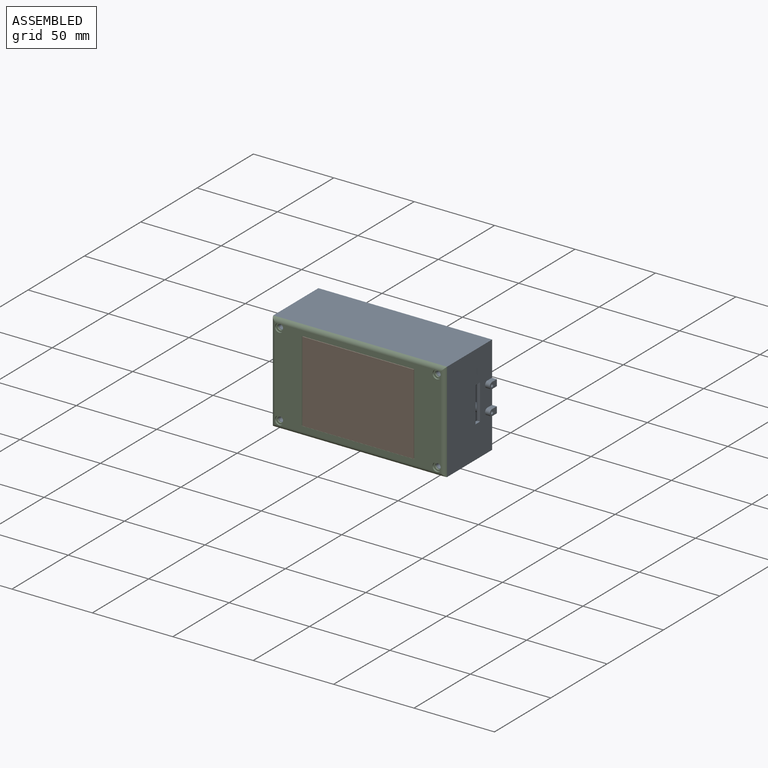
[diagram: assembled view]
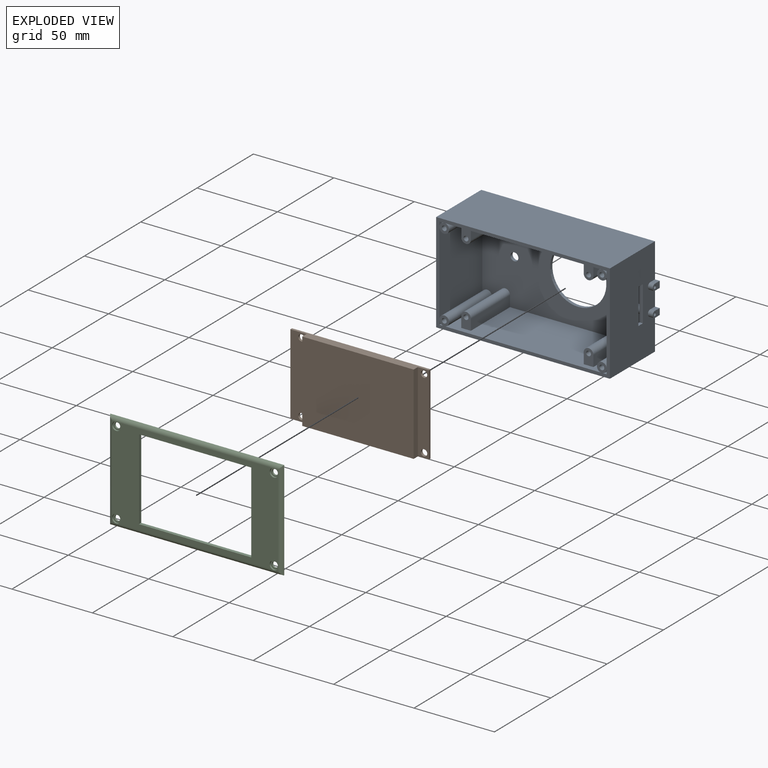
[diagram: exploded view]
GUIDED TOUR — MATED ASSEMBLY (Onshape document b6e88bd1a08d4e2666f2247d, AutoMate assembly b6e88bd1a08d4e2666f2247d_d2dd21feb8f51f84c31c7454_0775f172eb0f7f903577dd89_default)

This assembly has 3 components, labeled P0..P2 below (a component is one placed occurrence of a part; the same part can appear more than once), held together by 2 mates. A mate is a constraint between two components; its type names the relative motion it leaves free:
  FASTENED — locks the two components together rigidly (no relative motion).
Axis/direction vectors are unit vectors and 'through' points are millimeter coordinates, both in the assembly's world frame.

MATES
  1. FASTENED "Fastened 2": P2 <-> P0, direction (0.000, 1.000, 0.000) through (-46.40, -15.87, 29.94) mm
  2. FASTENED "Fastened 1": P1 <-> P0, direction (0.000, 1.000, 0.000) through (-35.13, -12.62, 25.94) mm

ASSEMBLY ORDER
  1. P1 — the base component [order verified]
  2. P2 [order verified]
  3. P0 [order verified]
Order-tag legend:
  [order verified] — this step's position reverses a verified removal order: the component was checked to insert without passing through the ones already placed.

Of the 3 components, 2 carry the full construction recipe — the FeatureScript program that regenerates the part's solid from scratch; the rest are supplied as boundary geometry only.
Each toured component is shown spotlighted twice — in the assembled view, then in the exploded view, where a leader line traces a displaced component back to its assembled socket (saturated green if recipe-attached, orange if geometry-only; every other component desaturated gray) — followed by its recipe or geometry summary and the mates that hold it.
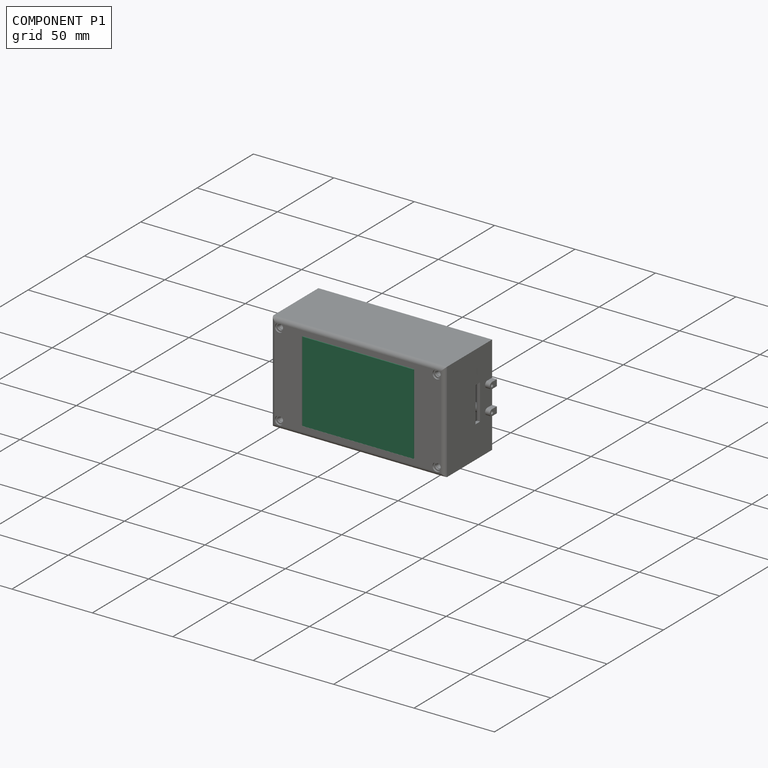
[diagram: component P1 — assembled]
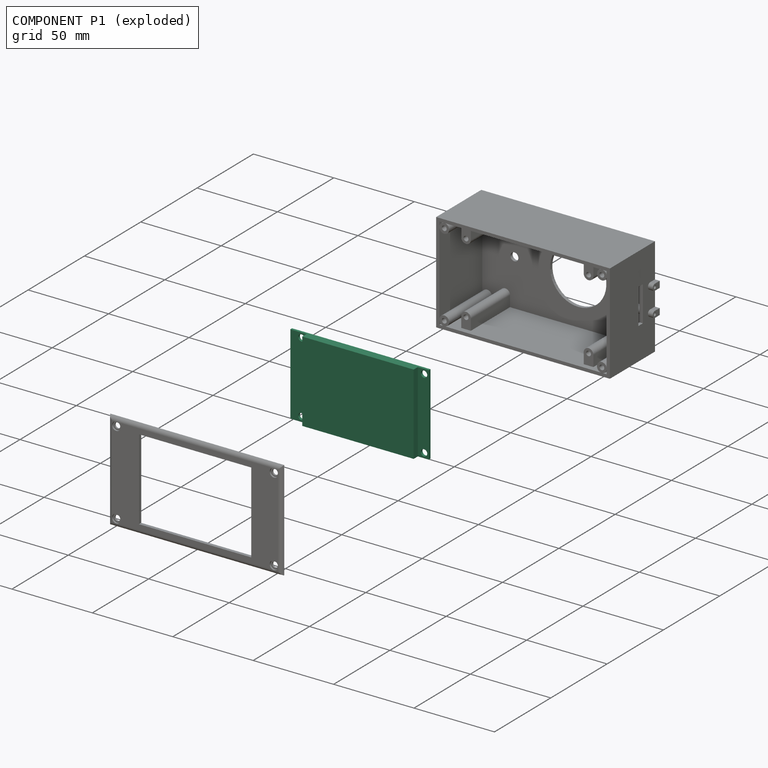
[diagram: component P1 — exploded]
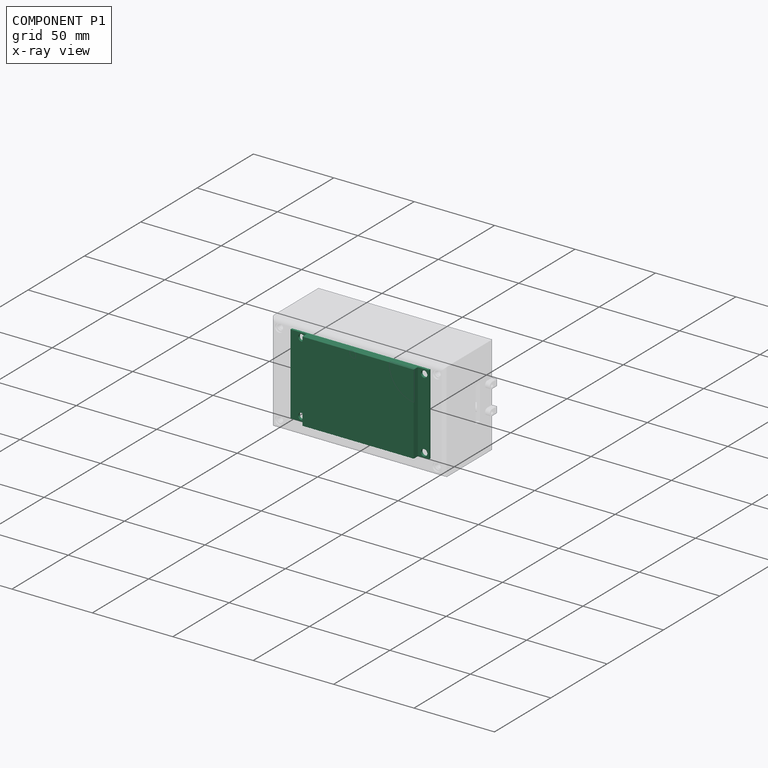
[diagram: component P1 — x-ray view]
COMPONENT P1 — recipe-attached (CADFS 00258539, mesh-verified: the recipe's output STEP matches this component's geometry to below the mesh-comparison resolution (tessellation chordal tolerance ~0.15 mm)).
Held by: FASTENED mate "Fastened 1" to P0.
Construction recipe (FeatureScript — the CAD program that rebuilds this solid; sketch coordinates are in the units given by the * unit suffixes, e.g. mm):

FeatureScript 1511;
import(path : "onshape/std/geometry.fs", version : "1511.0");
import(path : "onshape/std/common.fs", version : "1511.0");
const mm = millimeter;
const VERTEX = EntityType.VERTEX;
const EDGE = EntityType.EDGE;
const FACE = EntityType.FACE;
const BODY = EntityType.BODY;
function v(x, y){return vector(x, y);}
function OD(order){return orderDisambiguation(order);}
function OSD(set){return originalSetDisambiguation(set);}
function TD(topology){return topologyDisambiguation(topology);}
function TDD(query){return trueDependencyDisambiguation(query);}
function sQuery(a, b, c) {return sketchEntityQuery(a, b, c);}

annotation { "Feature Type Name" : "Feature", "Feature Type Description" : "" }
export const myFeature = defineFeature(function(context is Context, id is Id, definition is map)
    precondition{}
    {
        {
            var Q0;
            Q0=qCreatedBy(makeId("Front.planeOp"),FACE);
            var sketch = newSketch(context, id + "F0", { "sketchPlane" : qUnion([Q0])});
            skLineSegment(sketch, "E0.bottom", {"start": v(-43.05, 25.1) * mm, "end": v(43.05, 25.1) * mm});
            skLineSegment(sketch, "E0.top", {"start": v(-43.05, -25.1) * mm, "end": v(43.05, -25.1) * mm});
            skLineSegment(sketch, "E0.left", {"start": v(-43.05, 25.1) * mm, "end": v(-43.05, -25.1) * mm});
            skLineSegment(sketch, "E0.right", {"start": v(43.05, 25.1) * mm, "end": v(43.05, -25.1) * mm});
            skPoint(sketch, "E0.middle", {"position": v(0, 0) * mm});
            skSolve(sketch);
        }
        {
            var Q0;
            Q0 = qSketchRegion(id + "F0", true);
            extrude(context, id + "F1", {"entities" : qUnion([Q0]), "oppositeDirection" : true, "depth" : 1.5 * mm});
        }
        {
            var Q0;
            Q0=qCreatedBy(makeId("Front.planeOp"),FACE);
            var sketch = newSketch(context, id + "F2", { "sketchPlane" : qUnion([Q0])});
            skLineSegment(sketch, "E1.bottom", {"start": v(-33.05, 25.1) * mm, "end": v(36.25, 25.1) * mm});
            skLineSegment(sketch, "E1.top", {"start": v(-33.05, -25.1) * mm, "end": v(36.25, -25.1) * mm});
            skLineSegment(sketch, "E1.left", {"start": v(-33.05, 25.1) * mm, "end": v(-33.05, -25.1) * mm});
            skLineSegment(sketch, "E1.right", {"start": v(36.25, 25.1) * mm, "end": v(36.25, -25.1) * mm});
            skSolve(sketch);
        }
        {
            var Q0;
            Q0 = qSketchRegion(id + "F2", true);
            extrude(context, id + "F3", {"entities" : qUnion([Q0]), "operationType" : NewBodyOperationType.ADD, "depth" : 3.75 * mm});
        }
        {
            var Q0;
            Q0=qCreatedBy(makeId("Front.planeOp"),FACE);
            var sketch = newSketch(context, id + "F4", { "sketchPlane" : qUnion([Q0])});
            skCircle(sketch, "E2", {"center": v(-36.13, 22.1) * mm, "radius": 2 * mm});
            skCircle(sketch, "E3", {"center": v(-36.13, -22.1) * mm, "radius": 2 * mm});
            skCircle(sketch, "E4", {"center": v(40.05, 22.1) * mm, "radius": 2 * mm});
            skCircle(sketch, "E5", {"center": v(40.05, -22.1) * mm, "radius": 2 * mm});
            skSolve(sketch);
        }
        {
            var Q0;
            Q0 = qSketchRegion(id + "F4", true);
            extrude(context, id + "F5", {"entities" : qUnion([Q0]), "operationType" : NewBodyOperationType.REMOVE, "endBound" : BoundingType.THROUGH_ALL, "oppositeDirection" : true, "depth" : 25 * mm});
        }
    });
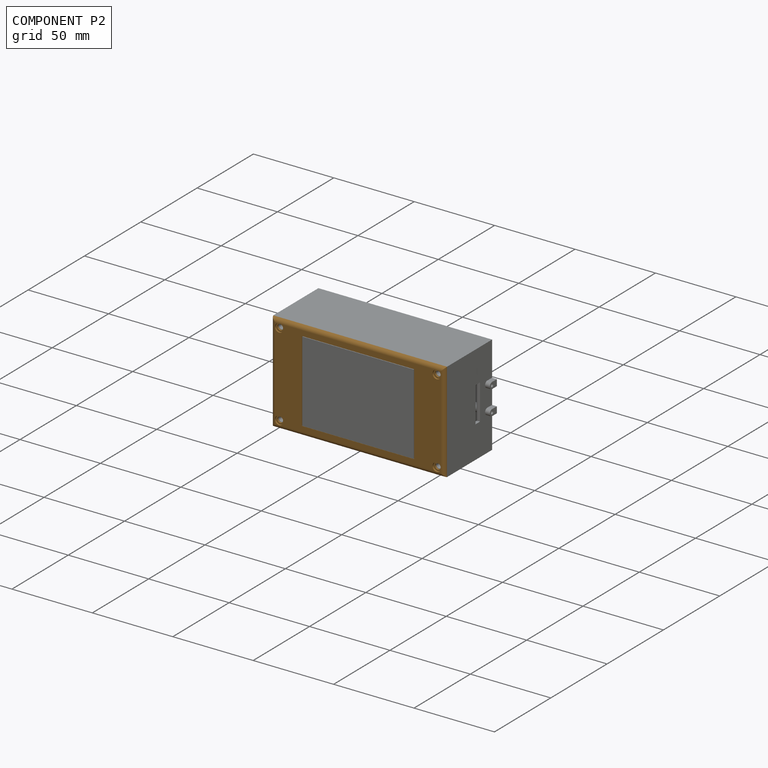
[diagram: component P2 — assembled]
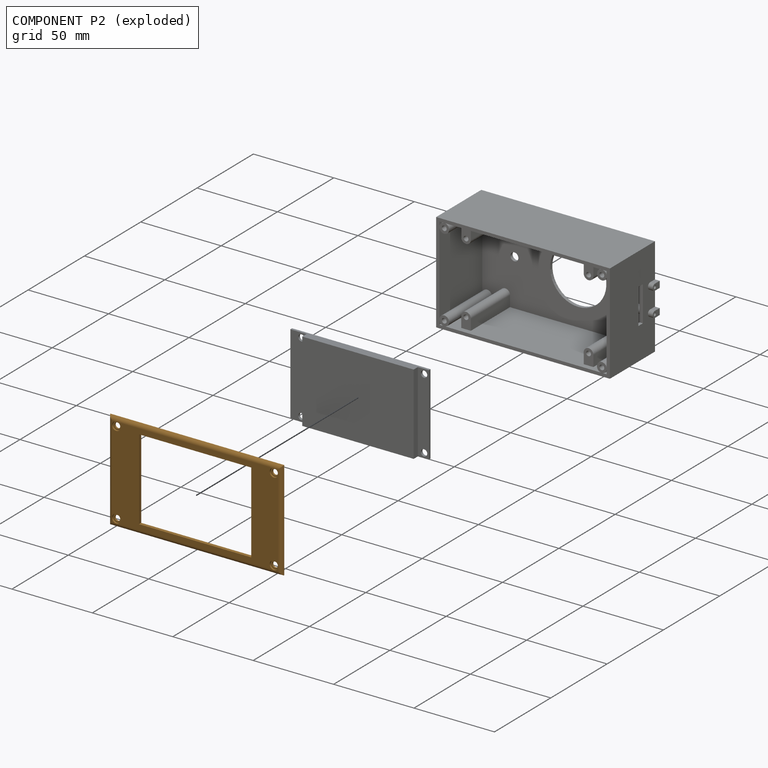
[diagram: component P2 — exploded]
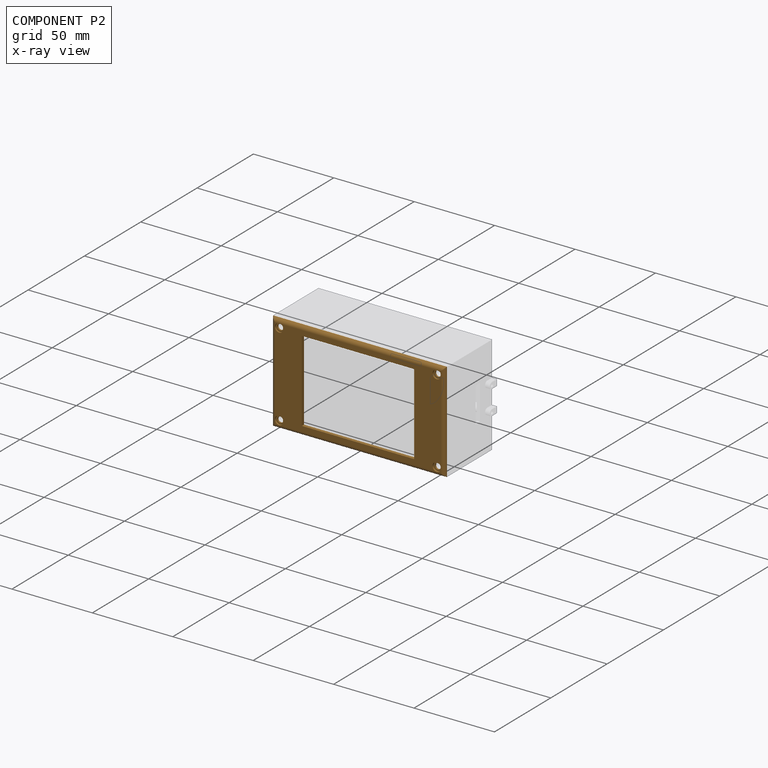
[diagram: component P2 — x-ray view]
COMPONENT P2 — geometry summary (no construction recipe available for this part):
  bounding box: 108.0 x 62.0 x 2.0 mm
  B-rep topology: 1 solid, 34 faces, 176 edges
  volume: 5660 mm^3 (42% of its bounding box)
  symmetry: mirror-symmetric across its x mid-plane, z mid-plane
Held by: FASTENED mate "Fastened 2" to P0.
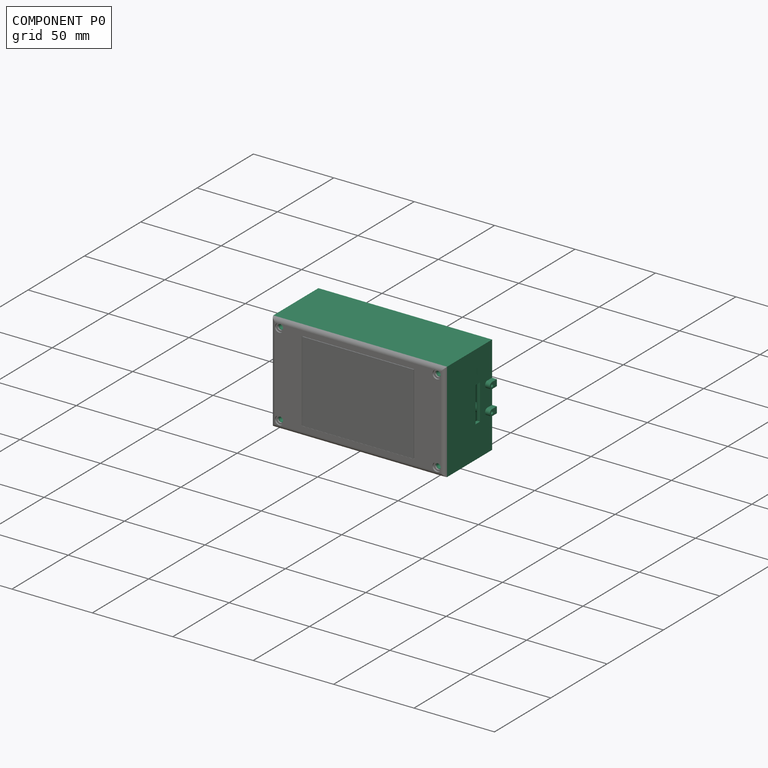
[diagram: component P0 — assembled]
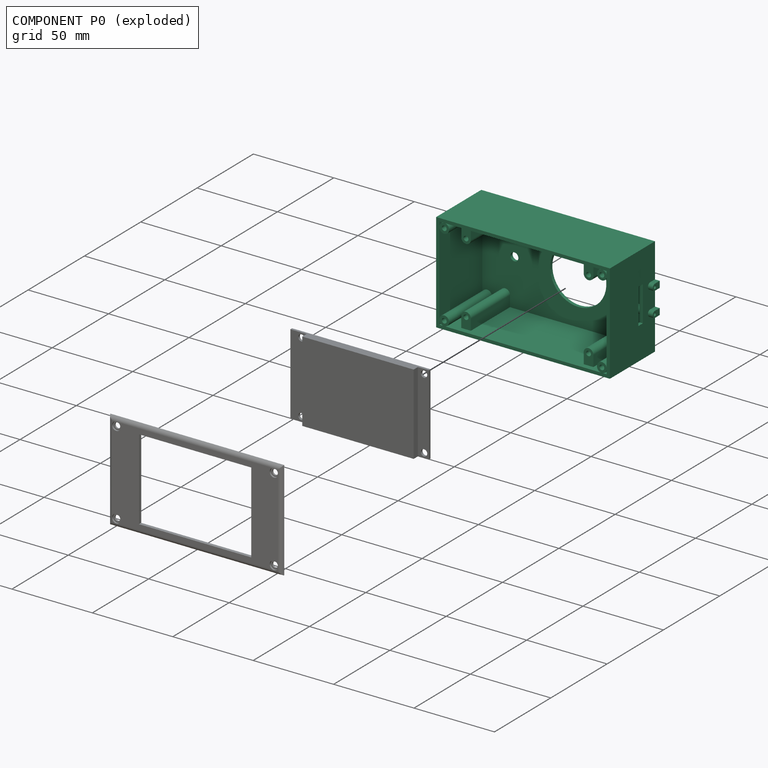
[diagram: component P0 — exploded]
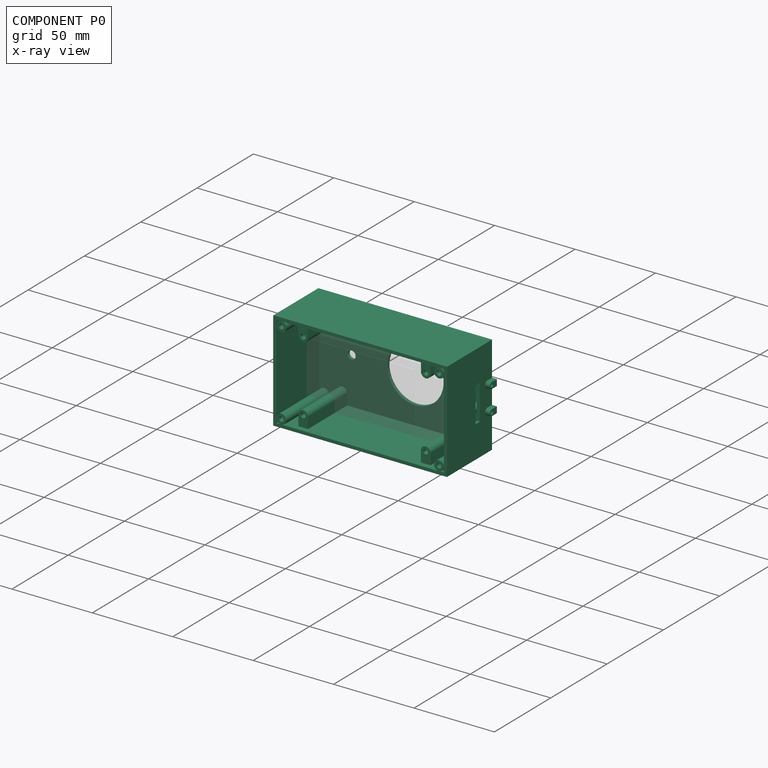
[diagram: component P0 — x-ray view]
COMPONENT P0 — recipe-attached (CADFS 00258538, mesh-verified: the recipe's output STEP matches this component's geometry to below the mesh-comparison resolution (tessellation chordal tolerance ~0.2 mm)).
Held by: FASTENED mate "Fastened 2" to P2; FASTENED mate "Fastened 1" to P1.
Construction recipe (FeatureScript — the CAD program that rebuilds this solid; sketch coordinates are in the units given by the * unit suffixes, e.g. mm):

FeatureScript 1511;
import(path : "onshape/std/geometry.fs", version : "1511.0");
import(path : "onshape/std/common.fs", version : "1511.0");
const mm = millimeter;
const VERTEX = EntityType.VERTEX;
const EDGE = EntityType.EDGE;
const FACE = EntityType.FACE;
const BODY = EntityType.BODY;
function v(x, y){return vector(x, y);}
function OD(order){return orderDisambiguation(order);}
function OSD(set){return originalSetDisambiguation(set);}
function TD(topology){return topologyDisambiguation(topology);}
function TDD(query){return trueDependencyDisambiguation(query);}
function sQuery(a, b, c) {return sketchEntityQuery(a, b, c);}

annotation { "Feature Type Name" : "Feature", "Feature Type Description" : "" }
export const myFeature = defineFeature(function(context is Context, id is Id, definition is map)
    precondition{}
    {
        {
            var Q0;
            Q0=qCreatedBy(makeId("Front.planeOp"),FACE);
            var sketch = newSketch(context, id + "F0", { "sketchPlane" : qUnion([Q0])});
            skLineSegment(sketch, "E0.bottom", {"start": v(-54, 31) * mm, "end": v(54, 31) * mm});
            skLineSegment(sketch, "E0.top", {"start": v(-54, -31) * mm, "end": v(54, -31) * mm});
            skLineSegment(sketch, "E0.left", {"start": v(-54, 31) * mm, "end": v(-54, -31) * mm});
            skLineSegment(sketch, "E0.right", {"start": v(54, 31) * mm, "end": v(54, -31) * mm});
            skPoint(sketch, "E0.middle", {"position": v(0, 0) * mm});
            skSolve(sketch);
        }
        {
            var Q0;
            Q0 = qSketchRegion(id + "F0", true);
            extrude(context, id + "F1", {"entities" : qUnion([Q0]), "oppositeDirection" : true, "depth" : 40 * mm});
        }
        {
            var Q0;
            Q0=qCreatedBy(makeId("Front.planeOp"),FACE);
            var sketch = newSketch(context, id + "F2", { "sketchPlane" : qUnion([Q0])});
            skLineSegment(sketch, "E1.bottom", {"start": v(-52, 29) * mm, "end": v(52, 29) * mm});
            skLineSegment(sketch, "E1.top", {"start": v(-52, -29) * mm, "end": v(52, -29) * mm});
            skLineSegment(sketch, "E1.left", {"start": v(-52, 29) * mm, "end": v(-52, -29) * mm});
            skLineSegment(sketch, "E1.right", {"start": v(52, 29) * mm, "end": v(52, -29) * mm});
            skPoint(sketch, "E1.middle", {"position": v(0, 0) * mm});
            skSolve(sketch);
        }
        {
            var Q0;
            Q0 = qSketchRegion(id + "F2", true);
            extrude(context, id + "F3", {"entities" : qUnion([Q0]), "operationType" : NewBodyOperationType.REMOVE, "oppositeDirection" : true, "depth" : 38 * mm});
        }
        {
            var Q0;
            Q0=qCreatedBy(makeId("Front.planeOp"),FACE);
            var sketch = newSketch(context, id + "F4", { "sketchPlane" : qUnion([Q0])});
            skLineSegment(sketch, "E2", {"start": v(-34.65, 43.37) * mm, "end": v(34.65, 43.37) * mm, "construction": true});
            skCircle(sketch, "E3", {"center": v(-37.73, 43.37) * mm, "radius": 3 * mm, "construction": true});
            skCircle(sketch, "E4", {"center": v(38.45, 43.37) * mm, "radius": 3 * mm, "construction": true});
            skCircle(sketch, "E5", {"center": v(-37.73, 22) * mm, "radius": 3 * mm});
            skCircle(sketch, "E6", {"center": v(38.45, 22) * mm, "radius": 3 * mm});
            skCircle(sketch, "E7", {"center": v(-37.73, -22.2) * mm, "radius": 3 * mm});
            skCircle(sketch, "E8", {"center": v(38.45, -22.2) * mm, "radius": 3 * mm});
            skLineSegment(sketch, "E9", {"start": v(-40.73, 22) * mm, "end": v(-40.73, 29.02) * mm});
            skLineSegment(sketch, "E10", {"start": v(-34.73, 22) * mm, "end": v(-34.73, 29.02) * mm});
            skLineSegment(sketch, "E11", {"start": v(-40.73, 29.02) * mm, "end": v(-34.73, 29.02) * mm});
            skLineSegment(sketch, "E12", {"start": v(41.45, 22) * mm, "end": v(41.45, 29.1) * mm});
            skLineSegment(sketch, "E13", {"start": v(35.45, 22) * mm, "end": v(35.45, 29.1) * mm});
            skLineSegment(sketch, "E14", {"start": v(35.45, 29.1) * mm, "end": v(41.45, 29.1) * mm});
            skLineSegment(sketch, "E15", {"start": v(-40.73, -22.2) * mm, "end": v(-40.73, -29.27) * mm});
            skLineSegment(sketch, "E16", {"start": v(-34.73, -22.2) * mm, "end": v(-34.73, -29.29) * mm});
            skLineSegment(sketch, "E17", {"start": v(-34.73, -29.29) * mm, "end": v(-40.73, -29.27) * mm});
            skLineSegment(sketch, "E18", {"start": v(41.45, -22.2) * mm, "end": v(41.45, -29.3) * mm});
            skLineSegment(sketch, "E19", {"start": v(35.45, -22.2) * mm, "end": v(35.45, -29.3) * mm});
            skLineSegment(sketch, "E20", {"start": v(35.45, -29.3) * mm, "end": v(41.45, -29.3) * mm});
            skSolve(sketch);
        }
        {
            var Q0;
            Q0 = qSketchRegion(id + "F4", true);
            var Q1;
            Q1=makeQuery(id+"F3.boolean.opBoolean","COPY",FACE,{"derivedFrom":makeQuery(id+"F3.opExtrude","CAP_FACE",FACE,{"disambiguationData":[OSD([sQuery(id+"F2.wireOp",EDGE,"E1.bottom"),sQuery(id+"F2.wireOp",EDGE,"E1.top"),sQuery(id+"F2.wireOp",EDGE,"E1.left"),sQuery(id+"F2.wireOp",EDGE,"E1.right")])],"isStart":false})});
            extrude(context, id + "F5", {"entities" : qUnion([Q0]), "operationType" : NewBodyOperationType.ADD, "endBound" : BoundingType.UP_TO_SURFACE, "oppositeDirection" : true, "endBoundEntityFace" : qUnion([Q1]), "depth" : 25 * mm, "hasSecondDirection" : true, "secondDirectionOppositeDirection" : true, "secondDirectionDepth" : 3.25 * mm});
        }
        {
            var Q0;
            Q0=qCreatedBy(makeId("Front.planeOp"),FACE);
            var sketch = newSketch(context, id + "F6", { "sketchPlane" : qUnion([Q0])});
            skCircle(sketch, "E21", {"center": v(-49, 26) * mm, "radius": 3.05 * mm});
            skCircle(sketch, "E22", {"center": v(49, 26) * mm, "radius": 3.05 * mm});
            skCircle(sketch, "E23", {"center": v(49, -26) * mm, "radius": 3.05 * mm});
            skCircle(sketch, "E24", {"center": v(-49, -26) * mm, "radius": 3.05 * mm});
            skSolve(sketch);
        }
        {
            var Q0;
            Q0 = qSketchRegion(id + "F6", true);
            var Q1;
            Q1=makeQuery(id+"F3.boolean.opBoolean","COPY",FACE,{"derivedFrom":makeQuery(id+"F3.opExtrude","CAP_FACE",FACE,{"disambiguationData":[OSD([sQuery(id+"F2.wireOp",EDGE,"E1.bottom"),sQuery(id+"F2.wireOp",EDGE,"E1.top"),sQuery(id+"F2.wireOp",EDGE,"E1.left"),sQuery(id+"F2.wireOp",EDGE,"E1.right")])],"isStart":false})});
            extrude(context, id + "F7", {"entities" : qUnion([Q0]), "operationType" : NewBodyOperationType.ADD, "endBound" : BoundingType.UP_TO_SURFACE, "oppositeDirection" : true, "endBoundEntityFace" : qUnion([Q1]), "depth" : 25 * mm});
        }
        {
            var Q0;
            Q0=qCreatedBy(makeId("Front.planeOp"),FACE);
            var sketch = newSketch(context, id + "F8", { "sketchPlane" : qUnion([Q0])});
            skCircle(sketch, "E25", {"center": v(-49, 26) * mm, "radius": 1.5 * mm});
            skCircle(sketch, "E26", {"center": v(-49, -26) * mm, "radius": 1.5 * mm});
            skCircle(sketch, "E27", {"center": v(49, -26) * mm, "radius": 1.5 * mm});
            skCircle(sketch, "E28", {"center": v(49, 26) * mm, "radius": 1.5 * mm});
            skSolve(sketch);
        }
        {
            var Q0;
            Q0 = qSketchRegion(id + "F8", true);
            extrude(context, id + "F9", {"entities" : qUnion([Q0]), "operationType" : NewBodyOperationType.REMOVE, "oppositeDirection" : true, "depth" : 15 * mm});
        }
        {
            var Q0;
            Q0=qCreatedBy(makeId("Front.planeOp"),FACE);
            var sketch = newSketch(context, id + "F10", { "sketchPlane" : qUnion([Q0])});
            skLineSegment(sketch, "E29", {"start": v(-34.65, 43.4) * mm, "end": v(34.65, 43.4) * mm, "construction": true});
            skCircle(sketch, "E30", {"center": v(-37.73, 43.4) * mm, "radius": 3 * mm, "construction": true});
            skCircle(sketch, "E31", {"center": v(38.45, 43.4) * mm, "radius": 3 * mm, "construction": true});
            skCircle(sketch, "E32", {"center": v(-37.73, 22) * mm, "radius": 1.5 * mm});
            skCircle(sketch, "E33", {"center": v(-37.73, -22.2) * mm, "radius": 1.5 * mm});
            skCircle(sketch, "E34", {"center": v(38.45, 22) * mm, "radius": 1.5 * mm});
            skCircle(sketch, "E35", {"center": v(38.45, -22.2) * mm, "radius": 1.5 * mm});
            skSolve(sketch);
        }
        {
            var Q0;
            Q0 = qSketchRegion(id + "F10", true);
            extrude(context, id + "F11", {"entities" : qUnion([Q0]), "operationType" : NewBodyOperationType.REMOVE, "oppositeDirection" : true, "depth" : 18.5 * mm});
        }
        {
            var Q0;
            Q0=qCreatedBy(makeId("Front.planeOp"),FACE);
            var sketch = newSketch(context, id + "F12", { "sketchPlane" : qUnion([Q0])});
            skCircle(sketch, "E36", {"center": v(7.71, 0) * mm, "radius": 17.5 * mm});
            skCircle(sketch, "E37", {"center": v(-32, 0) * mm, "radius": 2.5 * mm});
            skCircle(sketch, "E38", {"center": v(32, 0) * mm, "radius": 2.5 * mm});
            skSolve(sketch);
        }
        {
            var Q0;
            Q0 = qSketchRegion(id + "F12", true);
            extrude(context, id + "F13", {"entities" : qUnion([Q0]), "operationType" : NewBodyOperationType.REMOVE, "endBound" : BoundingType.THROUGH_ALL, "oppositeDirection" : true, "depth" : 25 * mm});
        }
        {
            var Q0;
            Q0=makeQuery(id+"F1.opExtrude","SWEPT_FACE",FACE,{"disambiguationData":[OSD([sQuery(id+"F0.wireOp",EDGE,"E0.right")])]});
            cPlane(context, id + "F14", {"entities" : qUnion([Q0]), "cplaneType" : CPlaneType.OFFSET, "offset" : 0 * mm, "width" : 150 * mm, "height" : 150 * mm});
        }
        {
            var Q0;
            Q0=qCreatedBy(id+"F14.planeOp",FACE);
            var sketch = newSketch(context, id + "F15", { "sketchPlane" : qUnion([Q0])});
            skArc(sketch, "E39", {"start": v(35.79, 9.62) * mm, "mid": v(33.76, 7.6) * mm, "end": v(35.85, 5.63) * mm});
            skArc(sketch, "E40", {"start": v(35.82, -5.63) * mm, "mid": v(33.76, -7.6) * mm, "end": v(35.77, -9.62) * mm});
            skLineSegment(sketch, "E41.0", {"start": v(40, 31) * mm, "end": v(40, -31) * mm, "construction": true});
            skLineSegment(sketch, "E42", {"start": v(35.79, 9.62) * mm, "end": v(40, 9.57) * mm});
            skLineSegment(sketch, "E43", {"start": v(35.85, 5.63) * mm, "end": v(40, 5.63) * mm});
            skLineSegment(sketch, "E44", {"start": v(35.82, -5.63) * mm, "end": v(40, -5.74) * mm});
            skLineSegment(sketch, "E45", {"start": v(35.75, -9.62) * mm, "end": v(40, -9.62) * mm});
            skLineSegment(sketch, "E46", {"start": v(40, 9.57) * mm, "end": v(40, 5.63) * mm});
            skLineSegment(sketch, "E47", {"start": v(40, -5.74) * mm, "end": v(40, -9.62) * mm});
            skSolve(sketch);
        }
        {
            var Q0;
            Q0 = qSketchRegion(id + "F15", true);
            extrude(context, id + "F16", {"entities" : qUnion([Q0]), "operationType" : NewBodyOperationType.ADD, "oppositeDirection" : true, "depth" : 15 * mm, "hasSecondDirection" : true, "secondDirectionOppositeDirection" : false, "secondDirectionDepth" : 3 * mm});
        }
        {
            var Q0;
            Q0=qCreatedBy(id+"F14.planeOp",FACE);
            var sketch = newSketch(context, id + "F17", { "sketchPlane" : qUnion([Q0])});
            skLineSegment(sketch, "E48.bottom", {"start": v(29.26, -11) * mm, "end": v(25.26, -11) * mm});
            skLineSegment(sketch, "E48.top", {"start": v(29.26, 11) * mm, "end": v(25.26, 11) * mm});
            skLineSegment(sketch, "E48.left", {"start": v(29.26, -11) * mm, "end": v(29.26, 11) * mm});
            skLineSegment(sketch, "E48.right", {"start": v(25.26, -11) * mm, "end": v(25.26, 11) * mm});
            skPoint(sketch, "E48.middle", {"position": v(27.26, 0) * mm});
            skArc(sketch, "E49.0.1", {"start": v(35.85, 5.63) * mm, "mid": v(33.76, 7.6) * mm, "end": v(35.79, 9.62) * mm, "construction": true});
            skArc(sketch, "E49.0.3", {"start": v(35.79, 9.62) * mm, "mid": v(33.76, 7.6) * mm, "end": v(35.85, 5.63) * mm, "construction": true});
            skArc(sketch, "E50.0.1", {"start": v(35.75, -9.62) * mm, "mid": v(33.76, -7.6) * mm, "end": v(35.82, -5.63) * mm, "construction": true});
            skArc(sketch, "E50.0.3", {"start": v(35.82, -5.63) * mm, "mid": v(33.76, -7.6) * mm, "end": v(35.75, -9.62) * mm, "construction": true});
            skSolve(sketch);
        }
        {
            var Q0;
            Q0=makeQuery(id+"F17.imprint","IMPRINT",FACE,{"disambiguationData":[TD([[makeQuery(id+"F17.imprint","IMPRINT",EDGE,{"derivedFrom":sQuery(id+"F17.wireOp",EDGE,"E48.bottom")}),-1.0]])]});
            var Q1;
            {var subQ0=sQuery(id+"F6.wireOp",EDGE,"E22");var subQ1=sQuery(id+"F2.wireOp",EDGE,"E1.right");var subQ2=sQuery(id+"F6.wireOp",EDGE,"E23");Q1=makeQuery(id+"F7.boolean.opBoolean","SPLIT",FACE,{"disambiguationData":[TD([makeQuery(id+"F1.opExtrude","CAP_FACE",FACE,{"disambiguationData":[OSD([sQuery(id+"F0.wireOp",EDGE,"E0.bottom"),sQuery(id+"F0.wireOp",EDGE,"E0.top"),sQuery(id+"F0.wireOp",EDGE,"E0.left"),sQuery(id+"F0.wireOp",EDGE,"E0.right")])],"isStart":true}),makeQuery(id+"F3.boolean.opBoolean","COPY",FACE,{"derivedFrom":makeQuery(id+"F3.opExtrude","CAP_FACE",FACE,{"disambiguationData":[OSD([sQuery(id+"F2.wireOp",EDGE,"E1.bottom"),sQuery(id+"F2.wireOp",EDGE,"E1.top"),sQuery(id+"F2.wireOp",EDGE,"E1.left"),subQ1])],"isStart":false})}),makeQuery(id+"F7.opExtrude","CAP_FACE",FACE,{"disambiguationData":[OSD([sQuery(id+"F6.wireOp",EDGE,"E21")])],"isStart":true}),makeQuery(id+"F7.opExtrude","SWEPT_FACE",FACE,{"disambiguationData":[OSD([subQ0])]}),makeQuery(id+"F7.opExtrude","CAP_FACE",FACE,{"disambiguationData":[OSD([subQ0])],"isStart":true}),makeQuery(id+"F7.opExtrude","SWEPT_FACE",FACE,{"disambiguationData":[OSD([subQ2])]}),makeQuery(id+"F7.opExtrude","CAP_FACE",FACE,{"disambiguationData":[OSD([subQ2])],"isStart":true}),makeQuery(id+"F7.opExtrude","CAP_FACE",FACE,{"disambiguationData":[OSD([sQuery(id+"F6.wireOp",EDGE,"E24")])],"isStart":true})])],"derivedFrom":makeQuery(id+"F3.boolean.opBoolean","COPY",FACE,{"derivedFrom":makeQuery(id+"F3.opExtrude","SWEPT_FACE",FACE,{"disambiguationData":[OSD([subQ1])]})})});}
            extrude(context, id + "F18", {"entities" : qUnion([Q0]), "operationType" : NewBodyOperationType.REMOVE, "endBound" : BoundingType.UP_TO_SURFACE, "oppositeDirection" : true, "endBoundEntityFace" : qUnion([Q1]), "depth" : 25 * mm});
        }
        {
            var Q0;
            Q0=qCreatedBy(id+"F14.planeOp",FACE);
            var sketch = newSketch(context, id + "F19", { "sketchPlane" : qUnion([Q0])});
            skArc(sketch, "E51.0.1", {"start": v(35.85, 5.63) * mm, "mid": v(33.76, 7.6) * mm, "end": v(35.79, 9.62) * mm, "construction": true});
            skArc(sketch, "E51.0.3", {"start": v(35.79, 9.62) * mm, "mid": v(33.76, 7.6) * mm, "end": v(35.85, 5.63) * mm, "construction": true});
            skArc(sketch, "E52.0.1", {"start": v(35.75, -9.62) * mm, "mid": v(33.76, -7.6) * mm, "end": v(35.82, -5.63) * mm, "construction": true});
            skArc(sketch, "E52.0.3", {"start": v(35.82, -5.63) * mm, "mid": v(33.76, -7.6) * mm, "end": v(35.75, -9.62) * mm, "construction": true});
            skCircle(sketch, "E53", {"center": v(35.76, 7.62) * mm, "radius": 1 * mm});
            skCircle(sketch, "E54", {"center": v(35.76, -7.63) * mm, "radius": 1 * mm});
            skSolve(sketch);
        }
        {
            var Q0;
            Q0 = qSketchRegion(id + "F19", true);
            extrude(context, id + "F20", {"entities" : qUnion([Q0]), "operationType" : NewBodyOperationType.REMOVE, "oppositeDirection" : true, "depth" : 10 * mm, "hasSecondDirection" : true, "secondDirectionOppositeDirection" : false, "secondDirectionDepth" : 5 * mm});
        }
    });
PROVENANCE & LICENSES
Assembly (occurrences, transforms, mates, per-part STEP geometry): AutoMate dataset, Zenodo record 7776208, CC0.
Construction recipes: CADFS (HuggingFace VladPyatov/CADFS, CC-BY-4.0, layered over the ABC dataset), FeatureScript reconstruction programs keyed by ABC model id.
Join: ABC meta listings map ABC model id -> Onshape documentId; within a shared document, parts are matched by geometric signature (bounding-box dims + volume at 0.1% relative tolerance, exact B-rep face/solid counts).
Verification: 2 of this assembly's 3 components carry a recipe attachment, and every attachment is mesh-verified: the CADFS STEP and the AutoMate member STEP were compared as meshes in their shared local frame (symmetric sampled-point-to-mesh distance); worst across the 2 attachments: below the mesh-comparison resolution (tessellation chordal tolerance ~0.2 mm) on a 133 mm part.
Renders: orthographic iso camera (az 35 / el 25); the floor grid conveys scale (grid pitch printed in each image; no ruler). In the exploded view each component is displaced by its stored offset vector: the offsets alone carry the explosion direction (mate normal/axis signs are not orientation cues and do not encode it), and separation distances are assigned per mate-chain, not proportionally to assembly-order depth.
